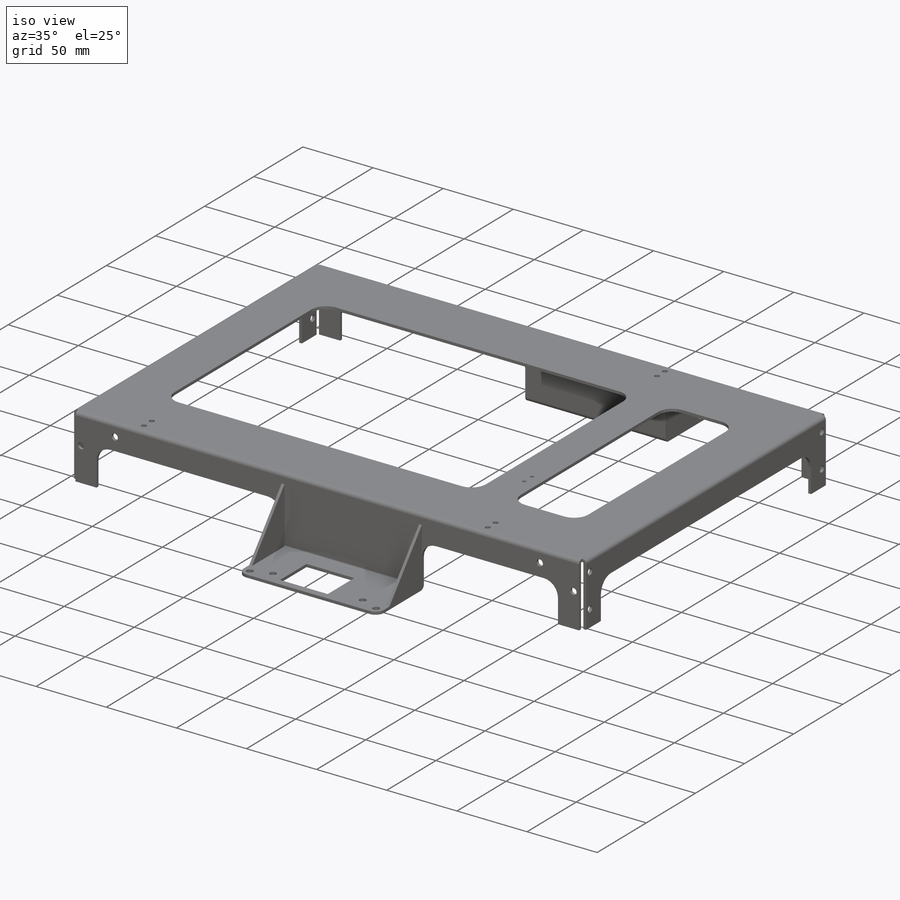
[diagram: iso view]
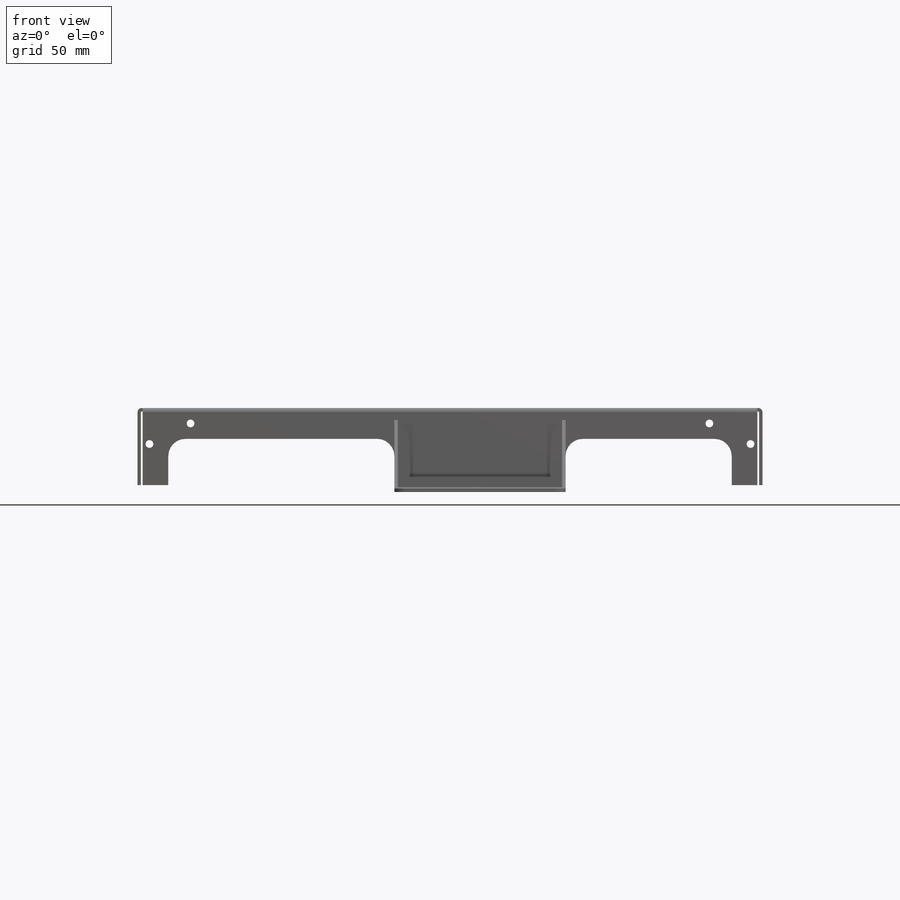
[diagram: front view]
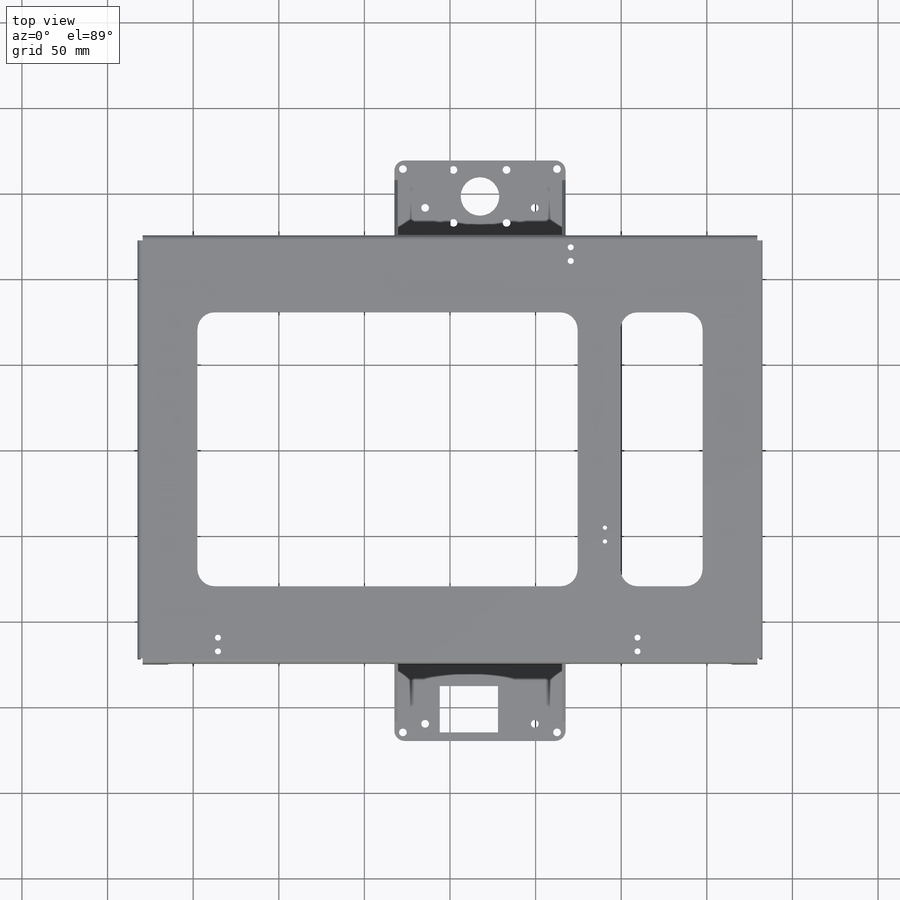
[diagram: top view]
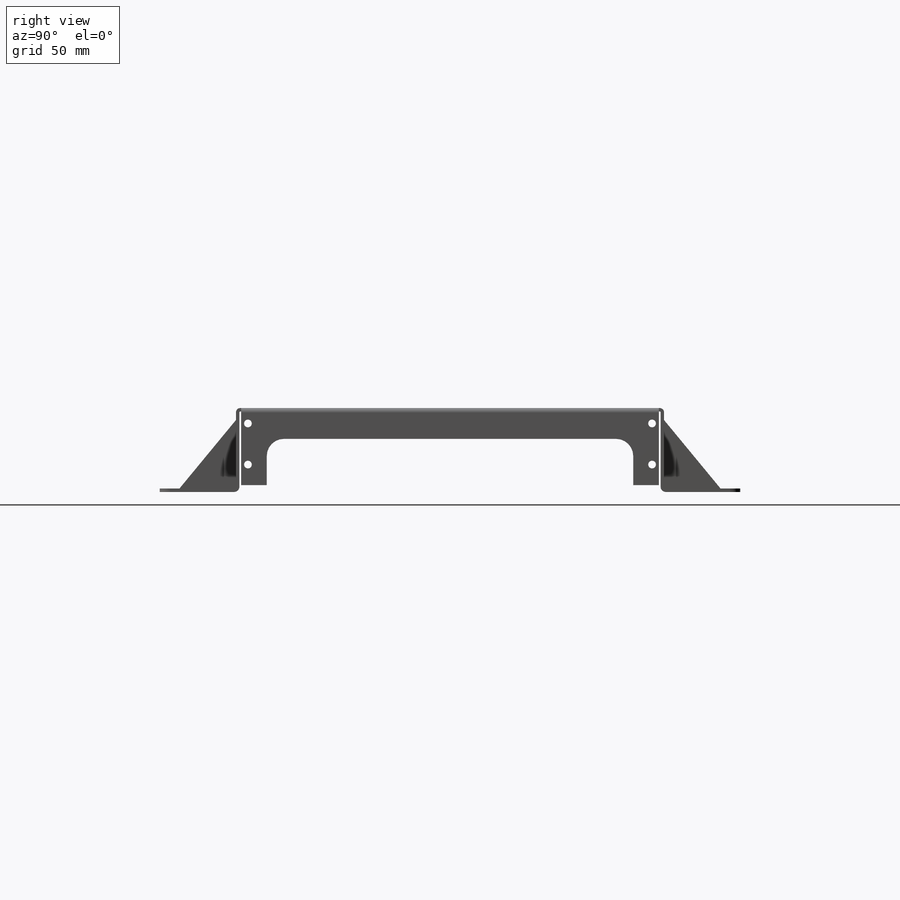
[diagram: right view]
SOLIDWORKS PART (.sldprt)
format: sldprt  version: not decoded by parser v0  size: 640,000 bytes
history: native  units: mm
features: sketch x13, cut_extrude x9, extrude x4, fillet x4, material x1, plane x1, mirror x1 (+11 scaffold rows collapsed)
feature tree (44):
  scaffold x11  (default folders/planes/origin — collapsed)
  material  "6061-T6 (SS)"
  sketch  "Sketch1"  dims[D1=2.5mm D2=250.0mm D3=2.0mm D4=45.0mm]
  extrude  "Boss-Extrude1"  Depth=365mm
  sketch  "Sketch2"  dims[D1=10.0mm D2=18.0mm D3=18.0mm D4=18.0mm]
  cut_extrude  "Cut-Extrude1"  [1 undecoded]
  sketch  "Sketch3"  dims[c1.D1=3.0mm c1.D2=1.0mm c1.D4=1.0mm c2.D2=47.0mm c2.D3=80.0mm c2.D4=80.0mm c3.D3=339.0mm c3.D4=79.0mm]
  extrude  "Boss-Extrude2"  Depth=100mm
  sketch  "Sketch4"  dims[c1.D1=40.0mm c1.D2=59.173mm c2.D2=45.0deg c3.D2=33.0mm]
  extrude  "Boss-Extrude3"  Depth=2mm
  plane  "Plane1"  Offset=17.5mm
  mirror  "Mirror1"
  sketch  "Sketch5"  dims[c1.D3=22.5mm c1.D4=4.5mm c1.D6=4.5mm c1.D1=31.0mm c1.D2=31.0mm c1.D5=21.0mm c1.D7=5.0mm c1.D8=34.0mm c1.D9=30.0mm c1.D10=37.5mm c2.D9=32.0mm c2.D11=50.0mm c2.D10=1.0mm]
  cut_extrude  "Cut-Extrude2"  Depth=2mm
  fillet  "Fillet1"  Radius=10mm
  sketch  "Sketch7"  dims[D1=2.0mm]
  extrude  "Boss-Extrude4"  [1 undecoded]
  sketch  "Sketch8"  dims[D1=3.0mm D2=~2.749123mm]
  cut_extrude  "Cut-Extrude4"  [1 undecoded]
  fillet  "Fillet2"  Radius=0.5mm
  fillet  "Fillet3"  Radius=2.5mm
  sketch  "Sketch9"  dims[D1=10.0mm D2=18.0mm D3=18.0mm D4=18.0mm]
  cut_extrude  "Cut-Extrude5"  [1 undecoded]
  sketch  "Sketch10"  dims[D1=4.5mm]
  cut_extrude  "Cut-Extrude6"  [1 undecoded]
  sketch  "Sketch11"  dims[D1=4.5mm]
  cut_extrude  "Cut-Extrude7"  [1 undecoded]
  sketch  "Sketch12"  dims[c1.D1=10.0mm c1.D4=10.0mm c1.D2=45.0mm c1.D3=45.0mm c2.D4=120.0mm c2.D5=35.0mm c2.D6=35.0mm c2.D7=25.0mm c2.D8=83.0mm]
  cut_extrude  "Cut-Extrude8"  [1 undecoded]
  sketch  "Sketch14"  dims[D1=7.0mm D7=16.0mm D2=70.0mm D3=70.0mm D4=10.0mm D5=11.0mm D6=14.0mm]
  cut_extrude  "Cut-Extrude9"  Depth=10mm
  fillet  "Fillet4"  Radius=6mm
  sketch  "Sketch15"  dims[D4=3.5mm D11=2.5mm D1=7.0mm D2=73.0mm D3=8.0mm D5=47.0mm D6=7.0mm D7=8.0mm D8=112.0mm D9=8.0mm D10=92.0mm D12=71.2mm]
  cut_extrude  "Cut-Extrude10"  Depth=10mm
decode coverage: 23 of 31 modeling features carry decoded parameters
note: ~ marks probable driven/reference dimensions
note: 7 parameter values undecoded
summary: no parameter record found for 7 features
note: suppression state not decoded; provenance and decode notes live in map.json
